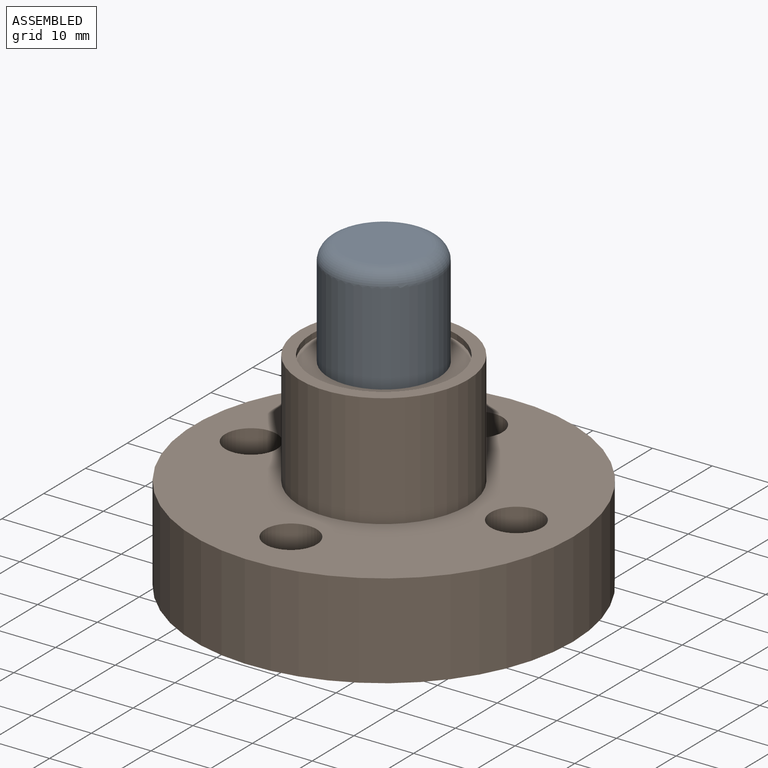
[diagram: assembled view]
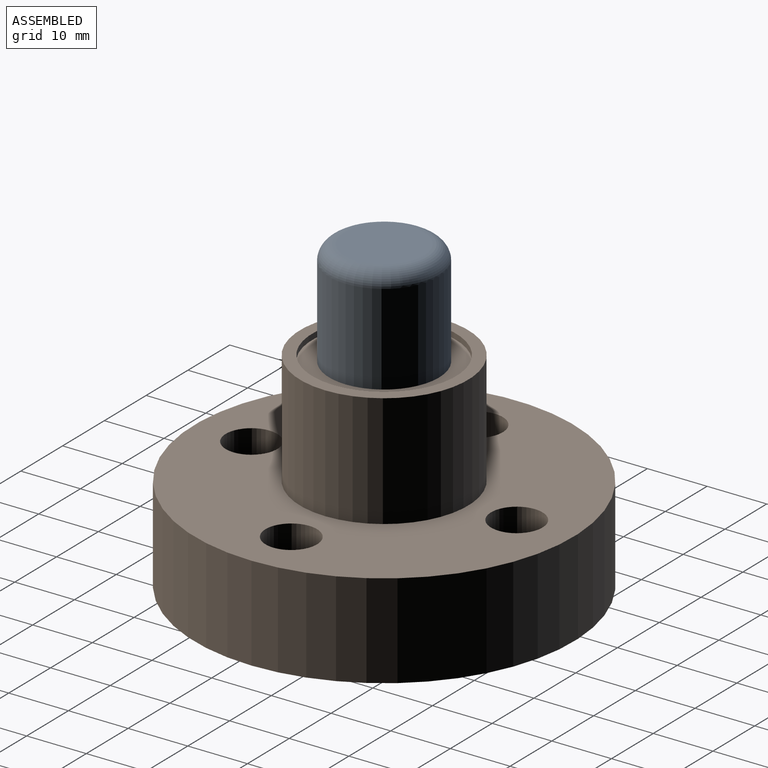
[diagram: assembled view, second angle]
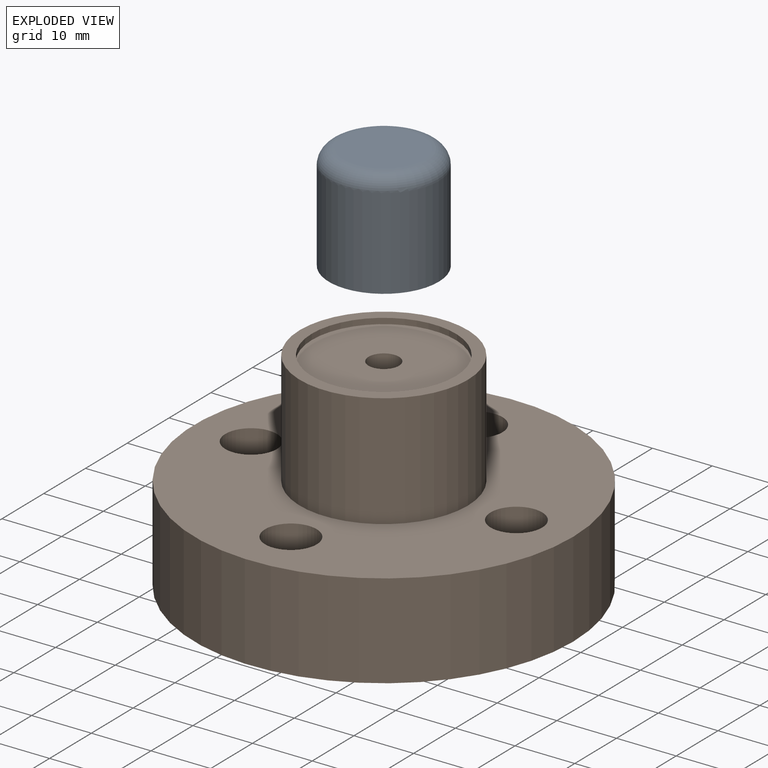
[diagram: exploded view]
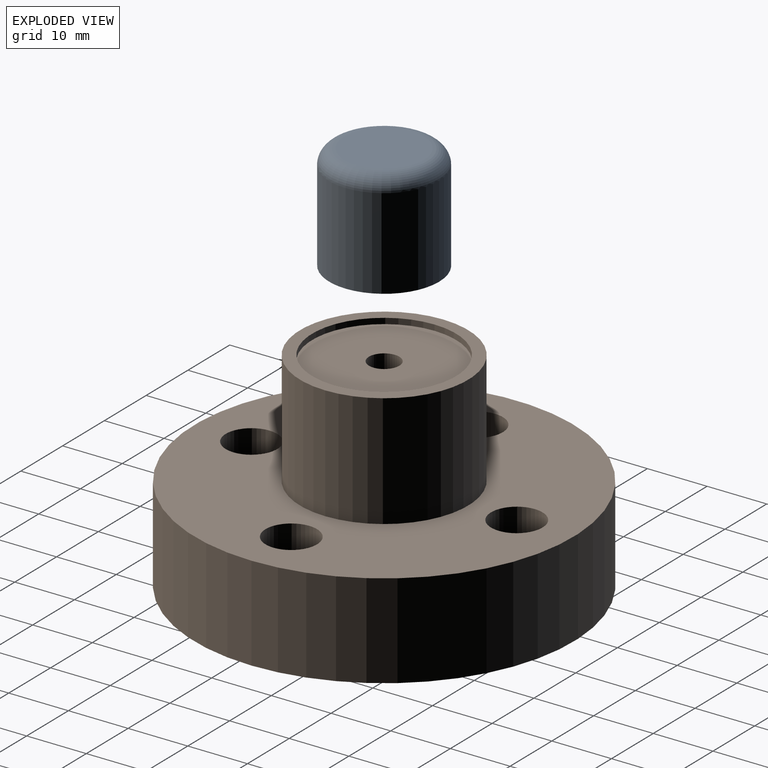
[diagram: exploded view, second angle]
ASSEMBLY  parts=2 mates=2
PART A: 6 faces, bbox 19.9x19.9x17.8 mm
  f0: cylinder r=9.21mm len=18.42mm, axis (0,0,-1), area 881.7mm2, adj f2,f5
  f1: plane 13.34x13.34mm, normal (0,0,1), area 139.7mm2, adj f5
  f2: plane 18.42x18.42mm, normal (0,0,-1), area 245.9mm2, adj f0,f4
  f3: cone r=0mm half-angle=59deg, axis (0,0,-1), area 23.9mm2, adj f4
  f4: cylinder r=2.55mm len=12.7mm, axis (0,0,-1), area 203.7mm2, adj f2,f3
  f5: torus R=6.67mm, axis (0,0,1), area 207.7mm2, adj f0,f1
PART B: 14 faces, bbox 63.5x63.5x34.9 mm
  f0: cylinder r=31.75mm len=63.5mm, axis (0,0,-1), area 3166.9mm2, adj f1,f2
  f1: plane 63.5x63.5mm, normal (0,0,1), area 2309.4mm2, adj f0,f3,f4,f5,f6,f7
  f2: plane 63.5x63.5mm, normal (0,0,-1), area 2835.6mm2, adj f0,f3,f4,f5,f6,f13
  f3: cylinder r=4.32mm len=15.88mm, axis (0,0,1), area 430.7mm2, adj f1,f2
  f4: cylinder r=4.32mm len=15.88mm, axis (0,0,1), area 430.7mm2, adj f1,f2
  f5: cylinder r=4.32mm len=15.88mm, axis (0,0,1), area 430.7mm2, adj f1,f2
  f6: cylinder r=4.32mm len=15.88mm, axis (0,0,1), area 430.7mm2, adj f1,f2
  f7: cylinder r=14.08mm len=28.17mm, axis (0,0,-1), area 1685.8mm2, adj f1,f8
  f8: plane 28.17x28.17mm, normal (0,0,1), area 165.9mm2, adj f7,f9
  f9: cylinder r=12.06mm len=24.13mm, axis (0,0,1), area 72.2mm2, adj f8,f10
  f10: plane 24.13x24.13mm, normal (0,0,1), area 436.8mm2, adj f9,f11
  f11: cylinder r=2.55mm len=27.62mm, axis (0,0,-1), area 443mm2, adj f10,f12
  f12: plane 11.11x11.11mm, normal (0,0,-1), area 76.5mm2, adj f11,f13
  f13: cylinder r=5.56mm len=11.11mm, axis (0,0,-1), area 221.7mm2, adj f2,f12
PLACE A t=(-16.33,10.47,46.36)mm
PLACE B t=(-16.33,10.47,12.39)mm fixed
MATE cylindrical B.f11 <-> A.f3  axis (0,0,-1) through (-16.33,10.47,18.74)mm
MATE planar A.f0 <-> B.f9  axis (0,0,-1) through (-16.33,10.47,46.36)mm
